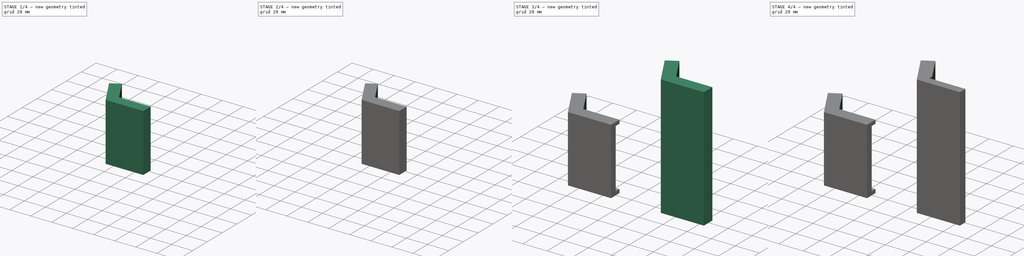
[diagram: build sequence overview — one tinted view per stage of 4, left to right]
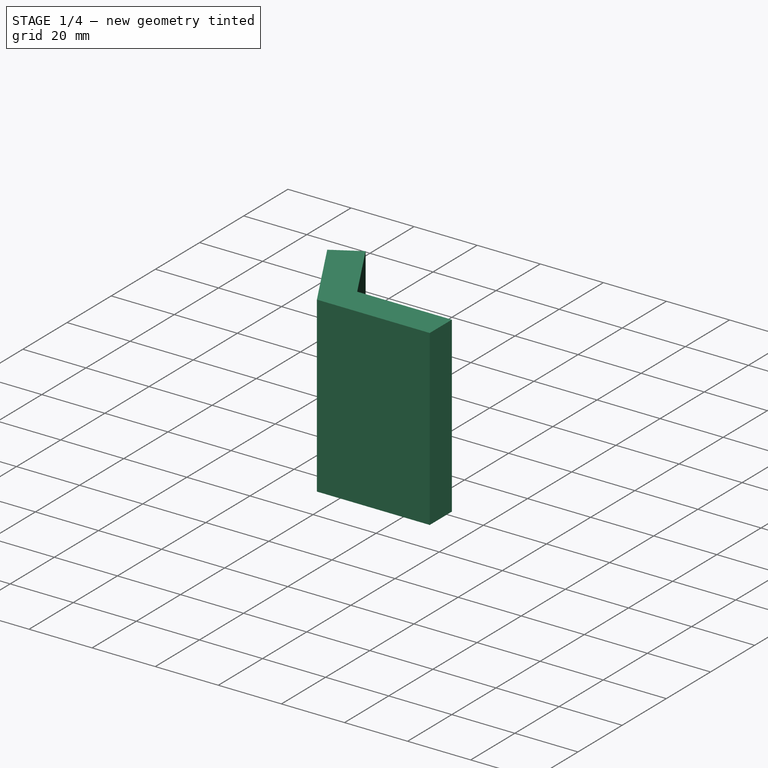
[diagram: stage 1 of 4 — iso view after this stage's code; geometry added in this stage tinted green]
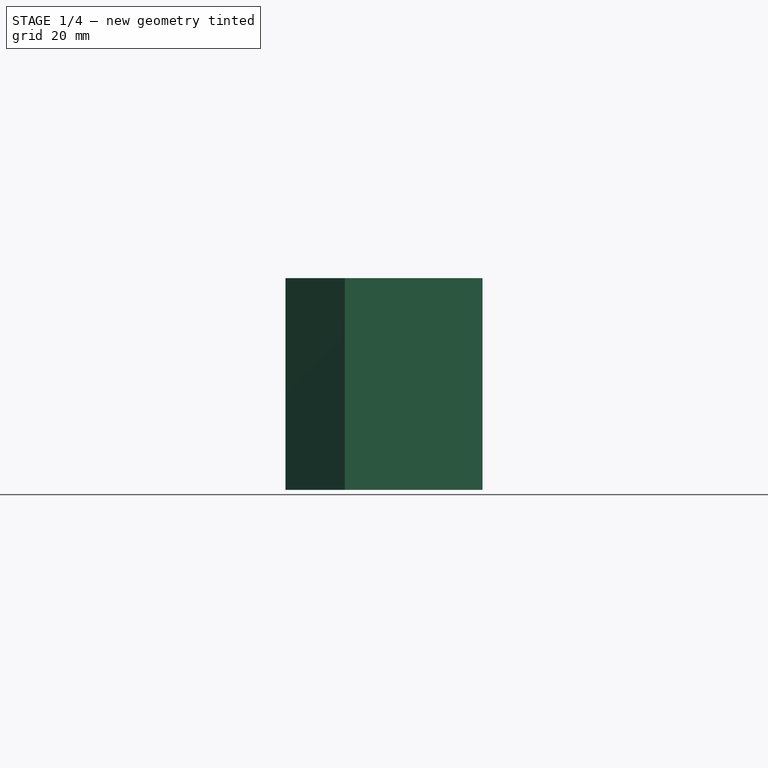
[diagram: stage 1 of 4 — front view after this stage's code; geometry added in this stage tinted green]
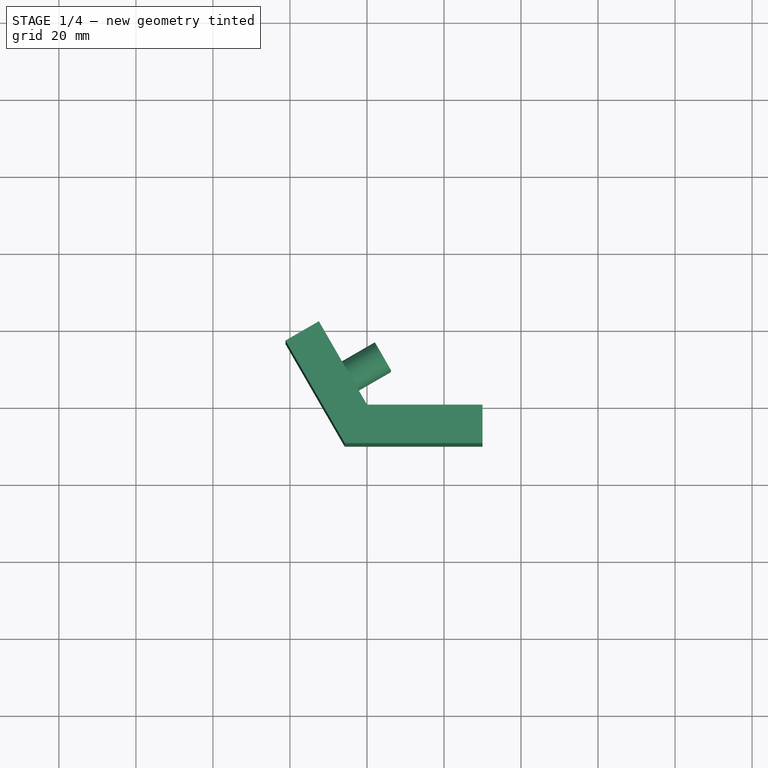
[diagram: stage 1 of 4 — top view after this stage's code; geometry added in this stage tinted green]
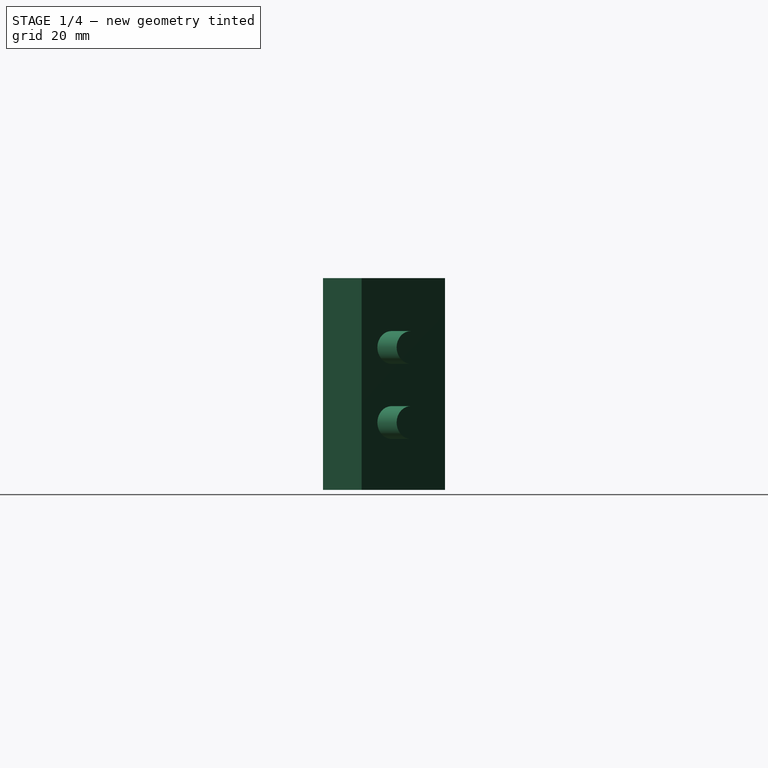
[diagram: stage 1 of 4 — right view after this stage's code; geometry added in this stage tinted green]
FCSTD DOCUMENT  (FreeCAD 0.18R16146 (Git))
Label: plexy_glass_holders
License: All rights reserved
LicenseURL: http://en.wikipedia.org/wiki/All_rights_reserved
objects: Sketcher::SketchObject×9, PartDesign::Pad×6, PartDesign::Pocket×3, PartDesign::Body×3
note: 30 computed .brp shape members not serialized (recipe doc carries the construction recipe); baked Part::Feature solids carry a one-line shape summary decoded from their .brp

FEATURE [PartDesign::Body] Body001  label="lower_1"
  Group = -> [Sketch003,Pad002,Sketch004,Pad003,Sketch005,Pocket001]
  Origin = -> Origin001
  Tip = -> Pocket001
FEATURE [Sketcher::SketchObject] Sketch007
  MapMode = 5
  Support = -> [XY_Plane002]
  sketch-geometry (6):
    g0: LineSegment StartX=30 StartY=0 StartZ=0 EndX=0 EndY=0 EndZ=0
    g1: LineSegment StartX=0 StartY=0 StartZ=0 EndX=-12.5 EndY=21.6506 EndZ=0
    g2: LineSegment StartX=-21.1603 StartY=16.6506 StartZ=0 EndX=-12.5 EndY=21.6506 EndZ=0
    g3: LineSegment StartX=30 StartY=-10 StartZ=0 EndX=30 EndY=0 EndZ=0
    g4: LineSegment StartX=-21.1603 StartY=16.6506 StartZ=0 EndX=-5.7735 EndY=-10 EndZ=0
    g5: LineSegment StartX=30 StartY=-10 StartZ=0 EndX=-5.7735 EndY=-10 EndZ=0
  constraints (17):
    c: Horizontal(g0)
    c: Coincident(g0,g-1)
    c: Distance(g0) = 30
    c: Coincident(g0,g1)
    c: Angle(g0,g1) = 2.0944
    c: Distance(g1) = 25
    c: Coincident(g2,g1)
    c: Perpendicular(g1,g2)
    c: Vertical(g3)
    c: Coincident(g3,g0)
    c: Distance(g3) = 10
    c: Distance(g2) = 10
    c: Coincident(g4,g2)
    c: Coincident(g5,g3)
    c: Horizontal(g5)
    c: Perpendicular(g2,g4)
    c: Coincident(g4,g5)
FEATURE [PartDesign::Pad] Pad004
  Length = 55
  Length2 = 100
  Profile = -> Sketch007
  Type = 0
FEATURE [Sketcher::SketchObject] Sketch008
  MapMode = 5
  Placement = pos=(0,0,0) rot=(0.377964,0.654654,0.654654;2.41886rad)
  Support = -> [Pad004]
  sketch-geometry (3):
    g0: Circle CenterX=9 CenterY=17.5 CenterZ=0 NormalX=0 NormalY=0 NormalZ=1 AngleXU=0 Radius=4.25
    g1: Circle CenterX=9 CenterY=37 CenterZ=0 NormalX=0 NormalY=0 NormalZ=1 AngleXU=0 Radius=4.25
    g2: LineSegment [constr] StartX=9 StartY=17.5 StartZ=0 EndX=9 EndY=37 EndZ=0
  constraints (8):
    c: DistanceY(g-1,g0) = 17.5
    c: DistanceX(g-2,g0) = 9
    c: Radius(g0) = 4.25
    c: Vertical(g2)
    c: Coincident(g2,g0)
    c: Coincident(g2,g1)
    c: Distance(g2) = 19.5
    c: Radius(g1) = 4.25
FEATURE [PartDesign::Pad] Pad005
  BaseFeature = -> Pad004
  Length = 10
  Length2 = 100
  Profile = -> Sketch008
  Type = 0
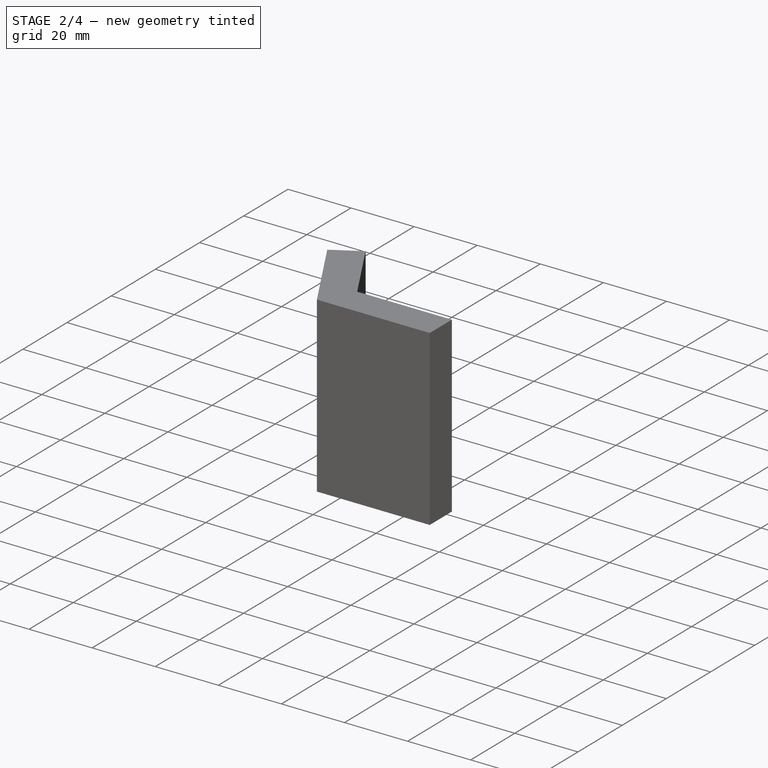
[diagram: stage 2 of 4 — iso view after this stage's code; geometry added in this stage tinted green]
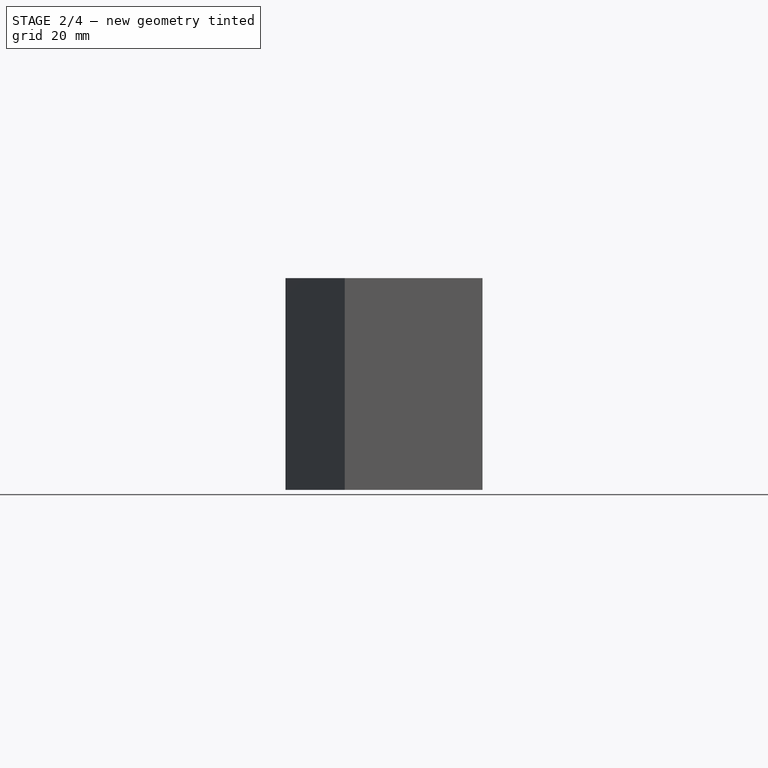
[diagram: stage 2 of 4 — front view after this stage's code; geometry added in this stage tinted green]
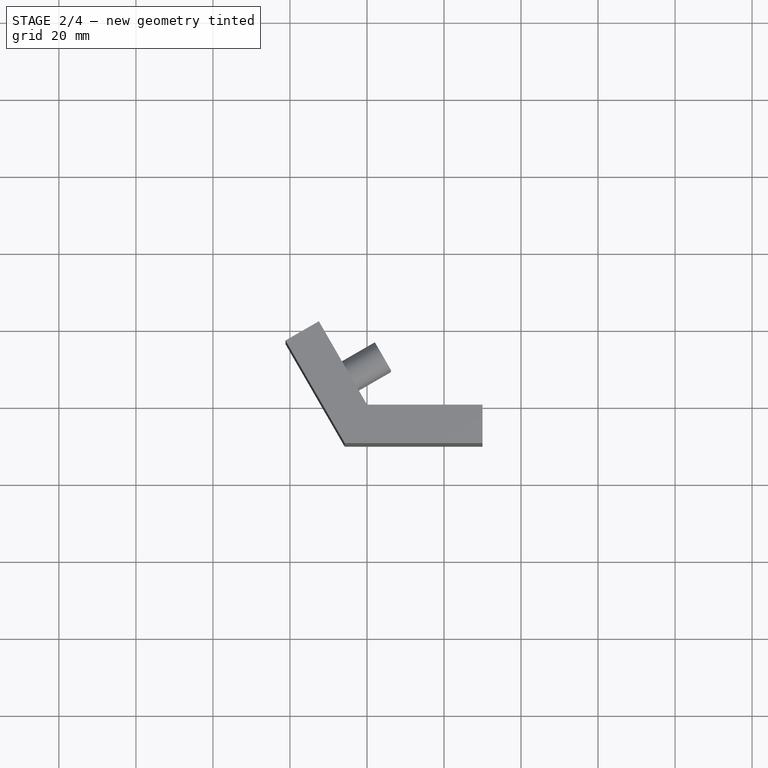
[diagram: stage 2 of 4 — top view after this stage's code; geometry added in this stage tinted green]
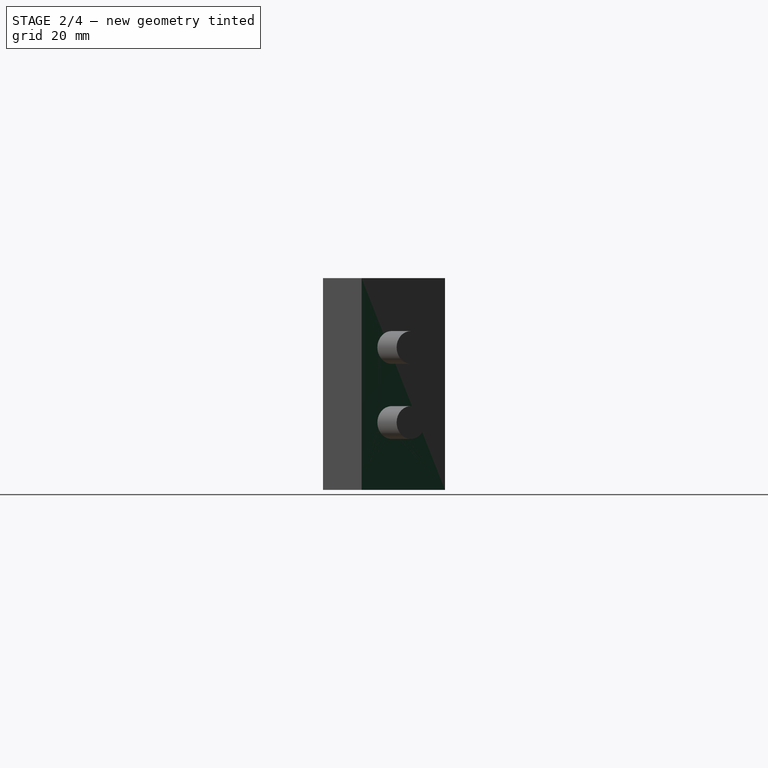
[diagram: stage 2 of 4 — right view after this stage's code; geometry added in this stage tinted green]
FEATURE [PartDesign::Body] Body  label="upper"
  Group = -> [Sketch,Pad,Sketch001,Pad001,Sketch002,Pocket]
  Origin = -> Origin
  Tip = -> Pocket
FEATURE [Sketcher::SketchObject] Sketch003
  MapMode = 5
  Support = -> [XY_Plane001]
  sketch-geometry (6):
    g0: LineSegment StartX=30 StartY=0 StartZ=0 EndX=0 EndY=0 EndZ=0
    g1: LineSegment StartX=0 StartY=0 StartZ=0 EndX=-12.5 EndY=21.6506 EndZ=0
    g2: LineSegment StartX=-21.1603 StartY=16.6506 StartZ=0 EndX=-12.5 EndY=21.6506 EndZ=0
    g3: LineSegment StartX=30 StartY=-10 StartZ=0 EndX=30 EndY=0 EndZ=0
    g4: LineSegment StartX=-21.1603 StartY=16.6506 StartZ=0 EndX=-5.7735 EndY=-10 EndZ=0
    g5: LineSegment StartX=30 StartY=-10 StartZ=0 EndX=-5.7735 EndY=-10 EndZ=0
  constraints (17):
    c: Horizontal(g0)
    c: Coincident(g0,g-1)
    c: Distance(g0) = 30
    c: Coincident(g0,g1)
    c: Angle(g0,g1) = 2.0944
    c: Distance(g1) = 25
    c: Coincident(g2,g1)
    c: Perpendicular(g1,g2)
    c: Vertical(g3)
    c: Coincident(g3,g0)
    c: Distance(g3) = 10
    c: Distance(g2) = 10
    c: Coincident(g4,g2)
    c: Coincident(g5,g3)
    c: Horizontal(g5)
    c: Perpendicular(g2,g4)
    c: Coincident(g4,g5)
FEATURE [PartDesign::Pad] Pad002
  Length = 55
  Length2 = 100
  Profile = -> Sketch003
  Type = 0
FEATURE [Sketcher::SketchObject] Sketch006
  MapMode = 5
  Placement = pos=(0,0,0) rot=(0,0.707107,0.707107;3.14159rad)
  Support = -> [Pad005]
  sketch-geometry (4):
    g0: LineSegment StartX=-30 StartY=55 StartZ=0 EndX=0 EndY=55 EndZ=0
    g1: LineSegment StartX=0 StartY=55 StartZ=0 EndX=0 EndY=3 EndZ=0
    g2: LineSegment StartX=0 StartY=3 StartZ=0 EndX=-30 EndY=3 EndZ=0
    g3: LineSegment StartX=-30 StartY=3 StartZ=0 EndX=-30 EndY=55 EndZ=0
  constraints (12):
    c: Coincident(g0,g1)
    c: Coincident(g1,g2)
    c: Coincident(g2,g3)
    c: Coincident(g3,g0)
    c: Horizontal(g0)
    c: Horizontal(g2)
    c: Vertical(g1)
    c: Vertical(g3)
    c: PointOnObject(g1,g-2)
    c: Distance(g-1,g1) = 3
    c: Distance(g2) = 30
    c: Distance(g3) = 52
FEATURE [PartDesign::Pocket] Pocket002
  BaseFeature = -> Pad005
  Length = 4.5
  Length2 = 100
  Profile = -> Sketch006
  Type = 0
FEATURE [PartDesign::Body] Body002  label="lower_2"
  Group = -> [Sketch007,Pad004,Sketch008,Pad005,Sketch006,Pocket002]
  Origin = -> Origin002
  Placement = pos=(-70,0,0) rot=(0,0,1;0rad)
  Tip = -> Pocket002
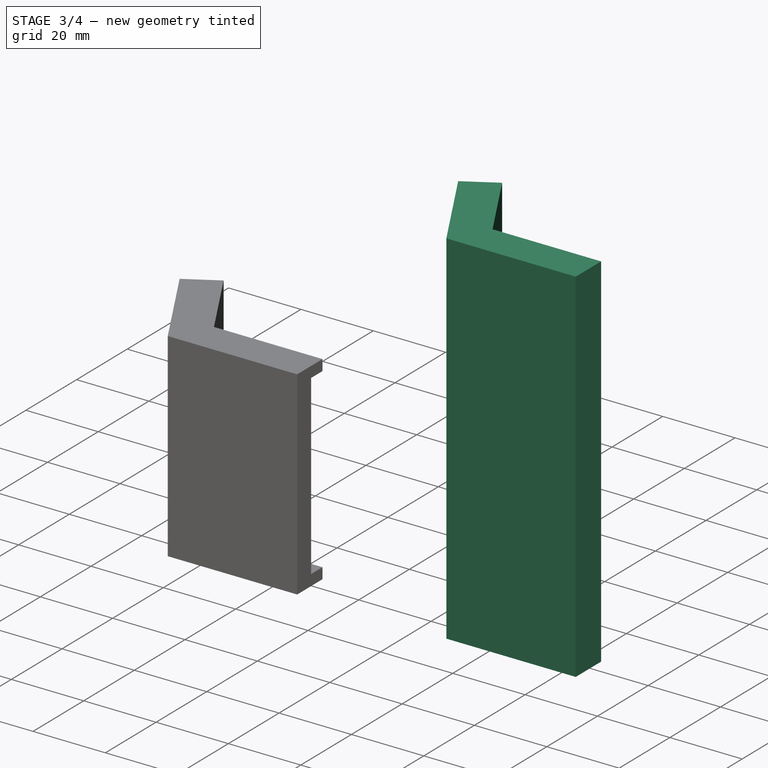
[diagram: stage 3 of 4 — iso view after this stage's code; geometry added in this stage tinted green]
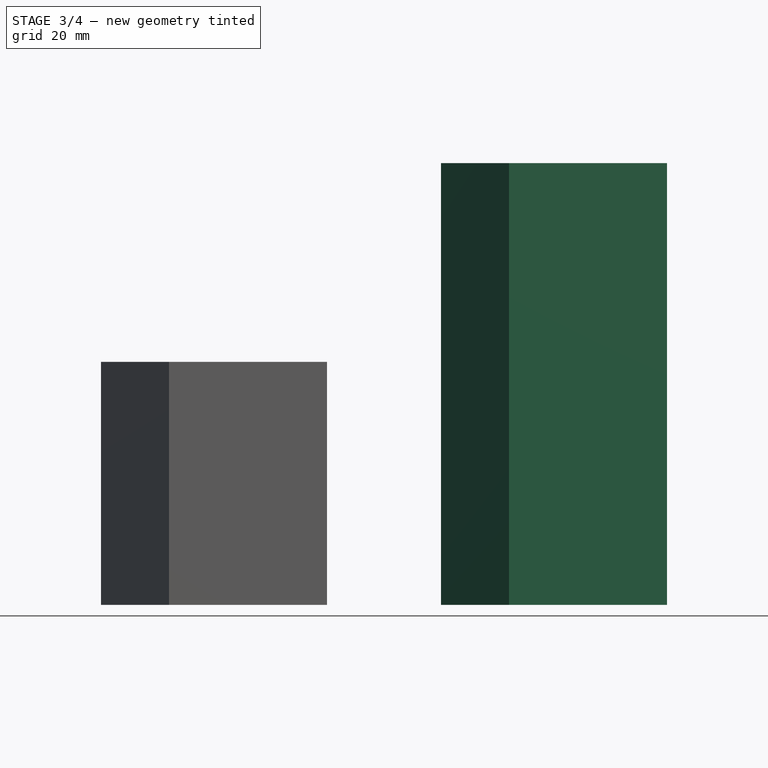
[diagram: stage 3 of 4 — front view after this stage's code; geometry added in this stage tinted green]
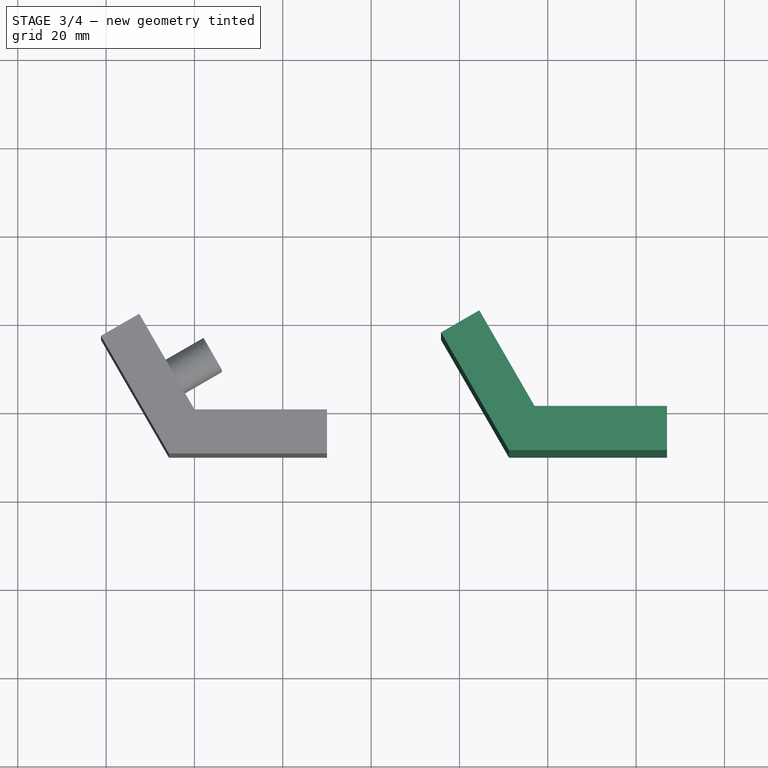
[diagram: stage 3 of 4 — top view after this stage's code; geometry added in this stage tinted green]
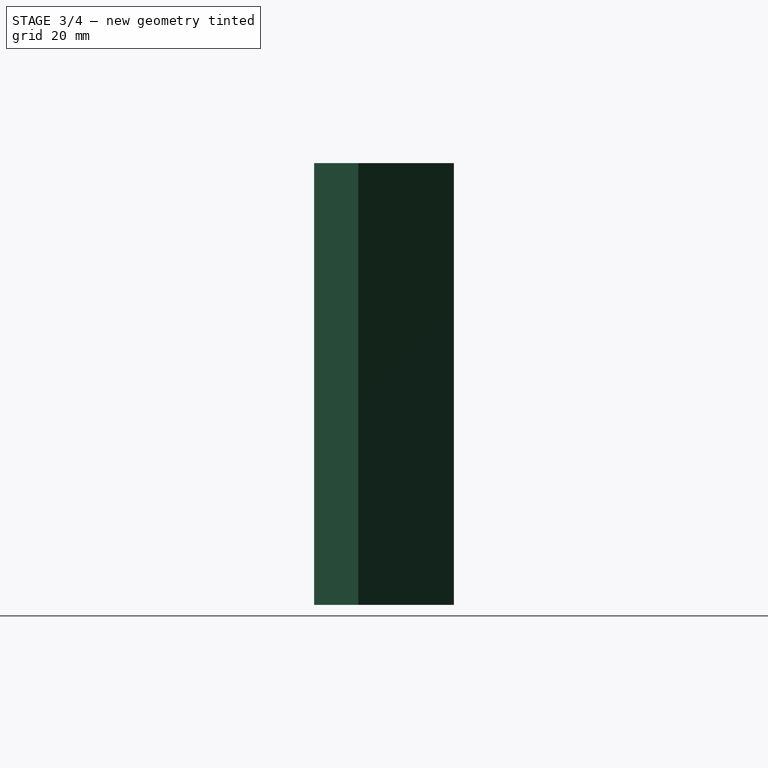
[diagram: stage 3 of 4 — right view after this stage's code; geometry added in this stage tinted green]
FEATURE [Sketcher::SketchObject] Sketch
  MapMode = 5
  Support = -> [XY_Plane]
  sketch-geometry (13):
    g0: LineSegment [constr] StartX=38.5 StartY=66.684 StartZ=0 EndX=77 EndY=0 EndZ=0
    g1: LineSegment [constr] StartX=329.5 StartY=570.711 StartZ=0 EndX=0 EndY=0 EndZ=0
    g2: LineSegment [constr] StartX=0 StartY=0 StartZ=0 EndX=659 EndY=0 EndZ=0
    g3: LineSegment [constr] StartX=659 StartY=0 StartZ=0 EndX=329.5 EndY=570.711 EndZ=0
    g4: Circle [constr] CenterX=329.5 CenterY=190.237 CenterZ=0 NormalX=0 NormalY=0 NormalZ=1 AngleXU=0 Radius=380.474
    g5: LineSegment [constr] StartX=291 StartY=504.027 StartZ=0 EndX=368 EndY=504.027 EndZ=0
    g6: LineSegment [constr] StartX=620.5 StartY=66.684 StartZ=0 EndX=582 EndY=0 EndZ=0
    g7: LineSegment StartX=77 StartY=0 StartZ=0 EndX=107 EndY=0 EndZ=0
    g8: LineSegment StartX=77 StartY=0 StartZ=0 EndX=64.5 EndY=21.6506 EndZ=0
    g9: LineSegment StartX=107 StartY=-10 StartZ=0 EndX=107 EndY=0 EndZ=0
    g10: LineSegment StartX=107 StartY=-10 StartZ=0 EndX=71.2265 EndY=-10 EndZ=0
    g11: LineSegment StartX=71.2265 StartY=-10 StartZ=0 EndX=55.8397 EndY=16.6506 EndZ=0
    g12: LineSegment StartX=55.8397 StartY=16.6506 StartZ=0 EndX=64.5 EndY=21.6506 EndZ=0
  constraints (40):
    c: Distance(g0) = 77
    c: Coincident(g1,g2)
    c: Coincident(g2,g3)
    c: Coincident(g3,g1)
    c: Equal(g1,g2)
    c: Equal(g1,g3)
    c: PointOnObject(g1,g4)
    c: PointOnObject(g2,g4)
    c: PointOnObject(g3,g4)
    c: Coincident(g1,g-1)
    c: PointOnObject(g2,g-1)
    c: PointOnObject(g0,g2)
    c: PointOnObject(g0,g1)
    c: Distance(g5) = 77
    c: PointOnObject(g5,g1)
    c: PointOnObject(g5,g3)
    c: PointOnObject(g6,g2)
    c: PointOnObject(g6,g3)
    c: Distance(g6) = 77
    c: Distance(g0,g6) = 505
    c: Horizontal(g5)
    c: Distance(g6,g5) = 505
    c: Distance(g0,g5) = 505
    c: Coincident(g7,g0)
    c: PointOnObject(g7,g2)
    c: Coincident(g8,g7)
    c: PointOnObject(g8,g0)
    c: Coincident(g12,g8)
    c: Coincident(g11,g12)
    c: Coincident(g11,g10)
    c: Coincident(g10,g9)
    c: Coincident(g9,g7)
    c: Perpendicular(g7,g9)
    c: Perpendicular(g8,g12)
    c: Perpendicular(g12,g11)
    c: Perpendicular(g9,g10)
    c: Distance(g12) = 10
    c: Distance(g8) = 25
    c: Distance(g7) = 30
    c: Distance(g9) = 10
FEATURE [PartDesign::Pad] Pad
  Length = 100
  Length2 = 100
  Profile = -> Sketch
  Type = 0
FEATURE [Sketcher::SketchObject] Sketch004
  MapMode = 5
  Placement = pos=(0,0,0) rot=(0.377964,0.654654,0.654654;2.41886rad)
  Support = -> [Pad002]
  sketch-geometry (3):
    g0: Circle CenterX=9 CenterY=17.5 CenterZ=0 NormalX=0 NormalY=0 NormalZ=1 AngleXU=0 Radius=4.25
    g1: Circle CenterX=9 CenterY=37 CenterZ=0 NormalX=0 NormalY=0 NormalZ=1 AngleXU=0 Radius=4.25
    g2: LineSegment [constr] StartX=9 StartY=17.5 StartZ=0 EndX=9 EndY=37 EndZ=0
  constraints (8):
    c: DistanceY(g-1,g0) = 17.5
    c: DistanceX(g-2,g0) = 9
    c: Radius(g0) = 4.25
    c: Vertical(g2)
    c: Coincident(g2,g0)
    c: Coincident(g2,g1)
    c: Distance(g2) = 19.5
    c: Radius(g1) = 4.25
FEATURE [PartDesign::Pad] Pad003
  BaseFeature = -> Pad002
  Length = 10
  Length2 = 100
  Profile = -> Sketch004
  Type = 0
FEATURE [Sketcher::SketchObject] Sketch005
  MapMode = 5
  Placement = pos=(0,0,0) rot=(0,0.707107,0.707107;3.14159rad)
  Support = -> [Pad003]
  sketch-geometry (4):
    g0: LineSegment StartX=0 StartY=0 StartZ=0 EndX=-30 EndY=0 EndZ=0
    g1: LineSegment StartX=-30 StartY=0 StartZ=0 EndX=-30 EndY=52 EndZ=0
    g2: LineSegment StartX=-30 StartY=52 StartZ=0 EndX=0 EndY=52 EndZ=0
    g3: LineSegment StartX=0 StartY=52 StartZ=0 EndX=0 EndY=0 EndZ=0
  constraints (11):
    c: Coincident(g0,g1)
    c: Coincident(g1,g2)
    c: Coincident(g2,g3)
    c: Coincident(g3,g0)
    c: Horizontal(g0)
    c: Horizontal(g2)
    c: Vertical(g1)
    c: Vertical(g3)
    c: Coincident(g0,g-1)
    c: Distance(g0) = 30
    c: Distance(g1) = 52
FEATURE [PartDesign::Pocket] Pocket001
  BaseFeature = -> Pad003
  Length = 4.5
  Length2 = 100
  Profile = -> Sketch005
  Type = 0
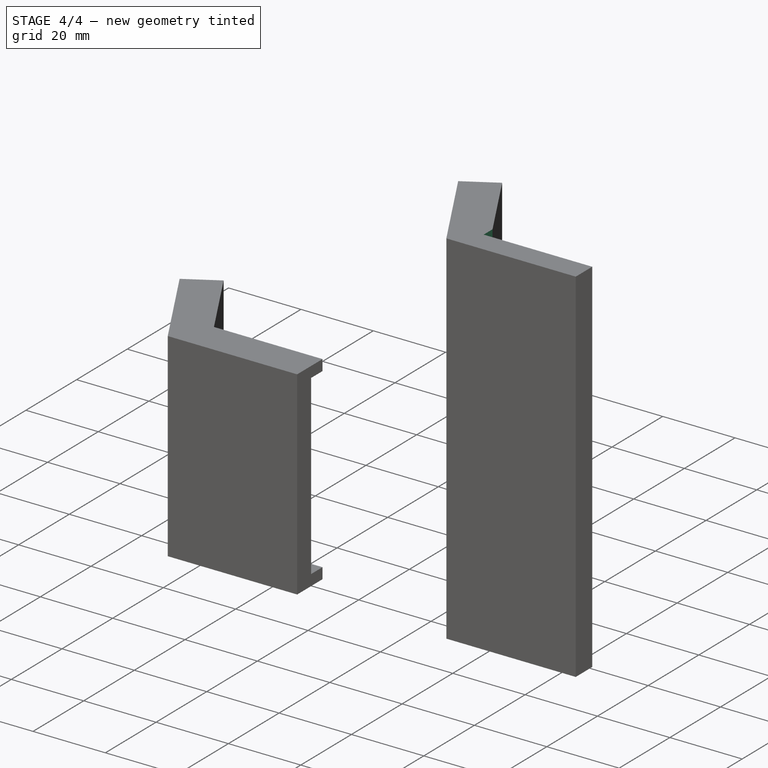
[diagram: stage 4 of 4 — iso view after this stage's code; geometry added in this stage tinted green]
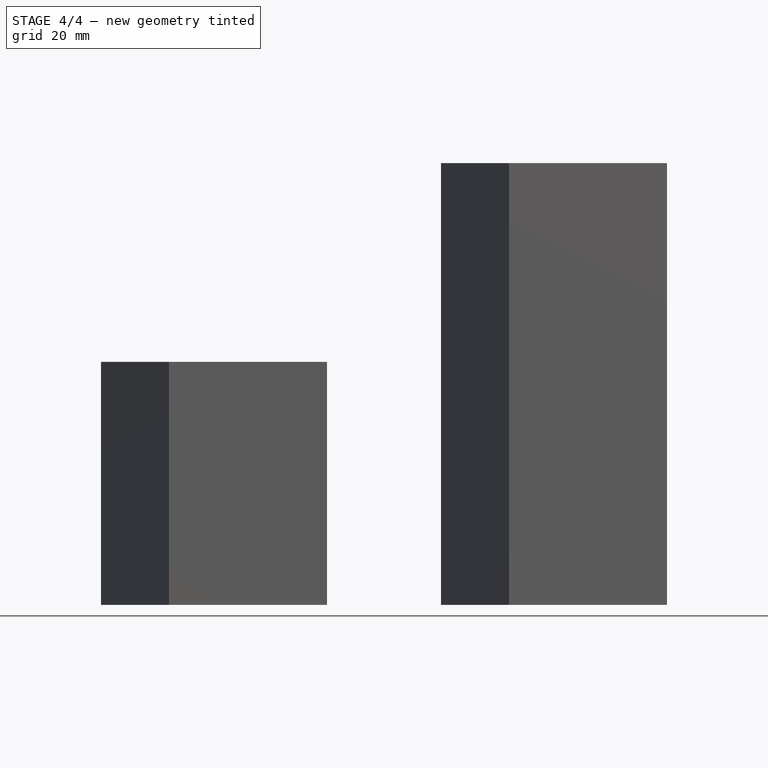
[diagram: stage 4 of 4 — front view after this stage's code; geometry added in this stage tinted green]
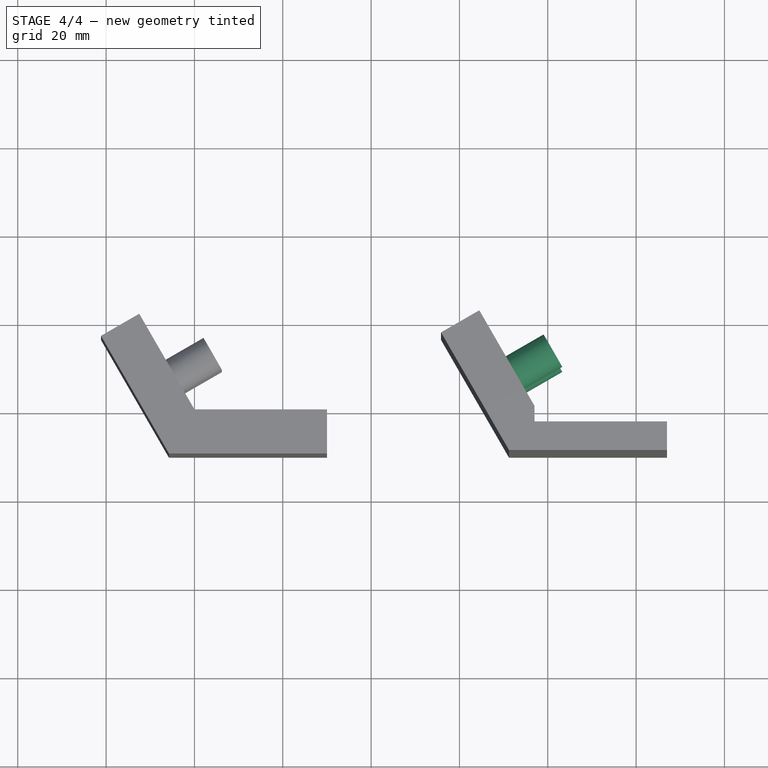
[diagram: stage 4 of 4 — top view after this stage's code; geometry added in this stage tinted green]
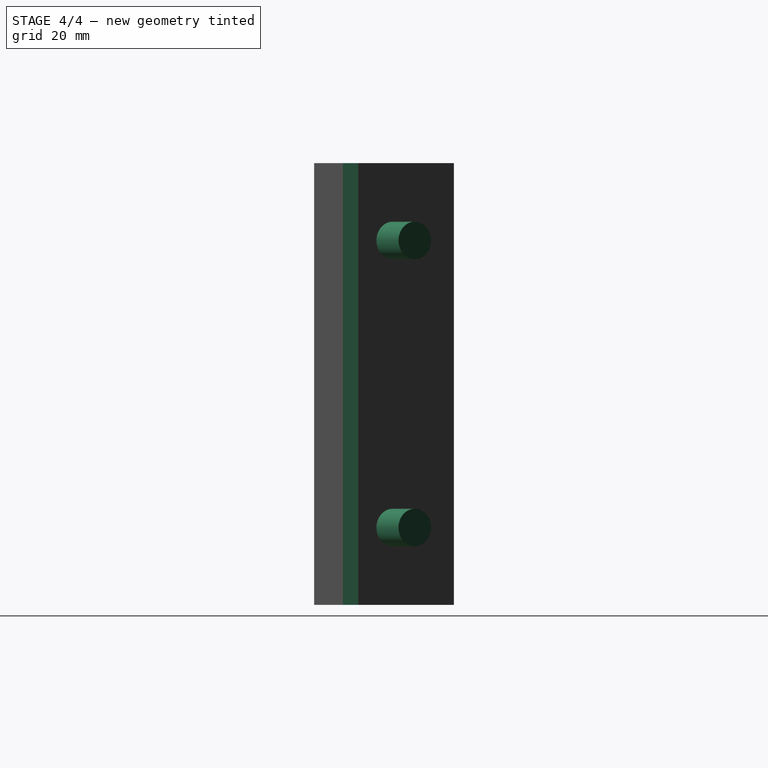
[diagram: stage 4 of 4 — right view after this stage's code; geometry added in this stage tinted green]
FEATURE [Sketcher::SketchObject] Sketch001
  MapMode = 5
  Placement = pos=(57.75,33.342,0) rot=(0.377964,0.654654,0.654654;2.41886rad)
  Support = -> [Pad]
  sketch-geometry (6):
    g0: Circle CenterX=-29.5 CenterY=82.5 CenterZ=0 NormalX=0 NormalY=0 NormalZ=1 AngleXU=0 Radius=4.25
    g1: Circle CenterX=-29.5 CenterY=17.5 CenterZ=0 NormalX=0 NormalY=0 NormalZ=1 AngleXU=0 Radius=4.25
    g2: LineSegment [constr] StartX=-29.5 StartY=100 StartZ=0 EndX=-29.5 EndY=0 EndZ=0
    g3: GeomPoint X=-29.5 Y=50 Z=0
    g4: LineSegment [constr] StartX=-38.5 StartY=100 StartZ=0 EndX=-38.5 EndY=0 EndZ=0
    g5: LineSegment [constr] StartX=-61.5 StartY=100 StartZ=0 EndX=0 EndY=100 EndZ=0
  constraints (20):
    c: Radius(g1) = 4.25
    c: Radius(g0) = 4.25
    c: PointOnObject(g2,g-1)
    c: Perpendicular(g-1,g2)
    c: PointOnObject(g0,g2)
    c: PointOnObject(g1,g2)
    c: Distance(g2) = 100
    c: Distance(g0,g1) = 65
    c: PointOnObject(g3,g2)
    c: Distance(g3,g0) = 32.5
    c: Distance(g3,g2) = 50
    c: Vertical(g4)
    c: PointOnObject(g4,g-1)
    c: Horizontal(g5)
    c: PointOnObject(g2,g5)
    c: PointOnObject(g4,g5)
    c: PointOnObject(g5,g-2)
    c: Distance(g5) = 61.5
    c: Distance(g4,g5) = 38.5
    c: Distance(g2,g4) = 9
FEATURE [PartDesign::Pad] Pad001
  BaseFeature = -> Pad
  Length = 10
  Length2 = 100
  Profile = -> Sketch001
  Type = 0
FEATURE [Sketcher::SketchObject] Sketch002
  MapMode = 5
  Placement = pos=(0,0,0) rot=(0,0.707107,0.707107;3.14159rad)
  Support = -> [Pad001]
  sketch-geometry (4):
    g0: LineSegment StartX=-77 StartY=0 StartZ=0 EndX=-107 EndY=0 EndZ=0
    g1: LineSegment StartX=-107 StartY=0 StartZ=0 EndX=-107 EndY=100 EndZ=0
    g2: LineSegment StartX=-107 StartY=100 StartZ=0 EndX=-77 EndY=100 EndZ=0
    g3: LineSegment StartX=-77 StartY=100 StartZ=0 EndX=-77 EndY=0 EndZ=0
  constraints (12):
    c: Coincident(g0,g1)
    c: Coincident(g1,g2)
    c: Coincident(g2,g3)
    c: Coincident(g3,g0)
    c: Horizontal(g0)
    c: Horizontal(g2)
    c: Vertical(g1)
    c: Vertical(g3)
    c: DistanceX(g-2,g0) = -77
    c: PointOnObject(g0,g-1)
    c: Distance(g0) = 30
    c: Distance(g1) = 100
FEATURE [PartDesign::Pocket] Pocket
  BaseFeature = -> Pad001
  Length = 3.5
  Length2 = 100
  Profile = -> Sketch002
  Type = 0
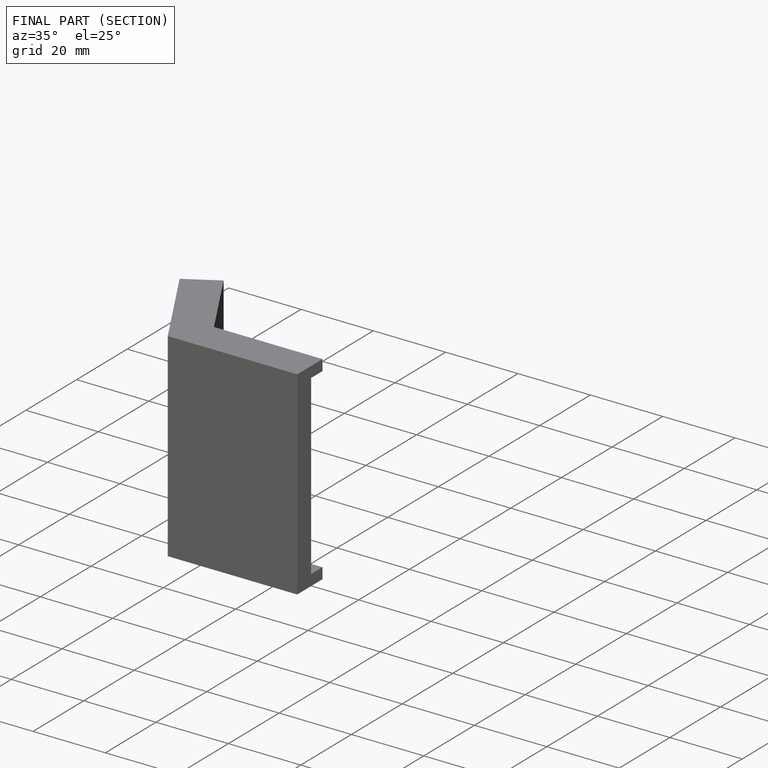
[diagram: finished part — half-section view (interior)]
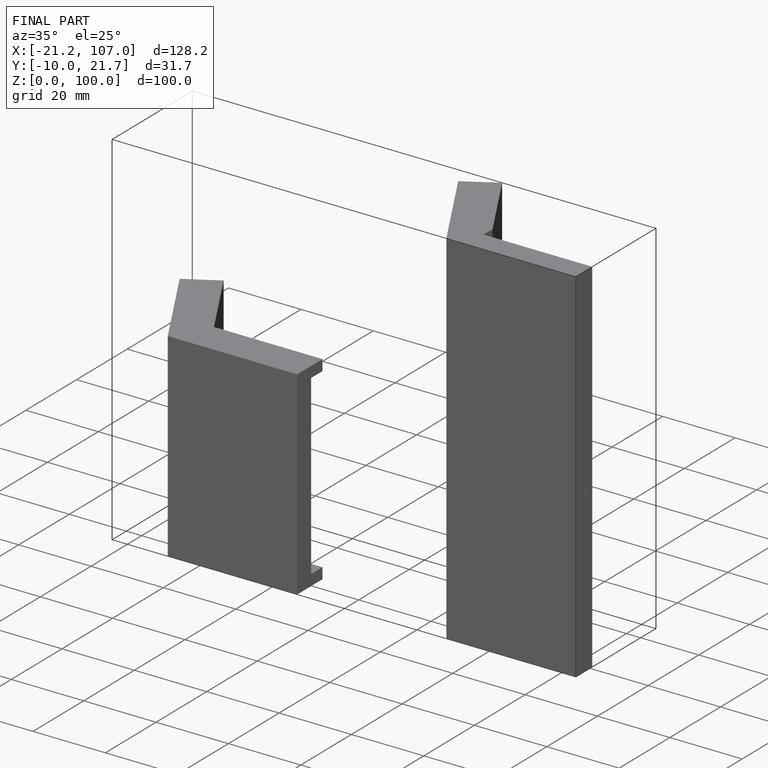
[diagram: finished part — iso view with bounding-box wireframe]
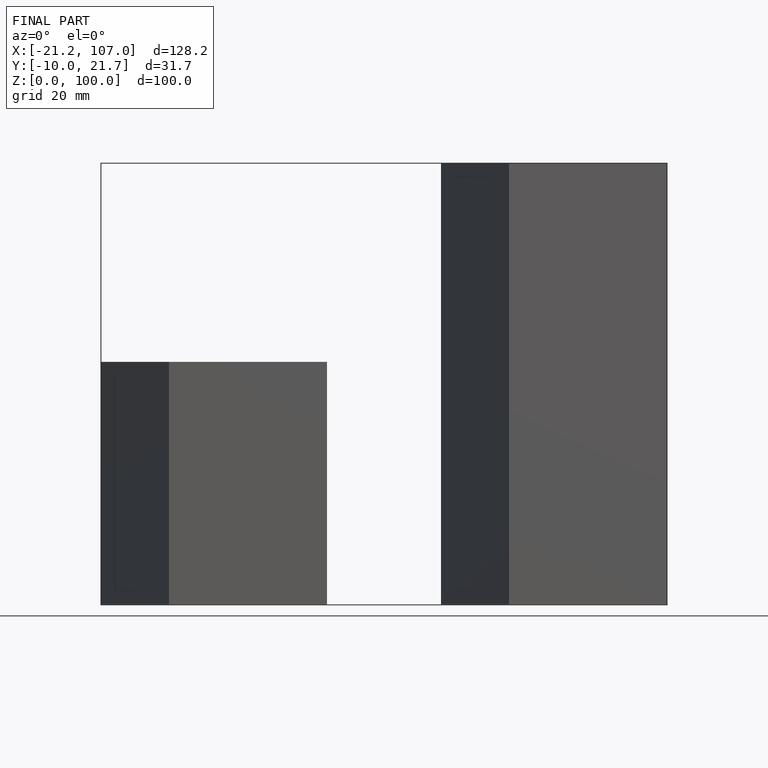
[diagram: finished part — front view with bounding-box wireframe]
